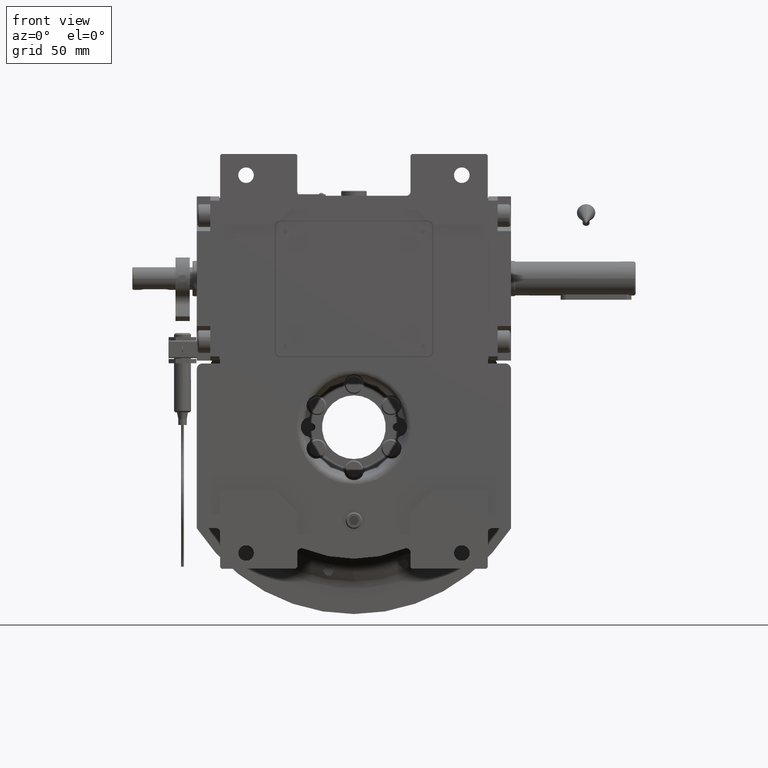
[diagram: clean part render]
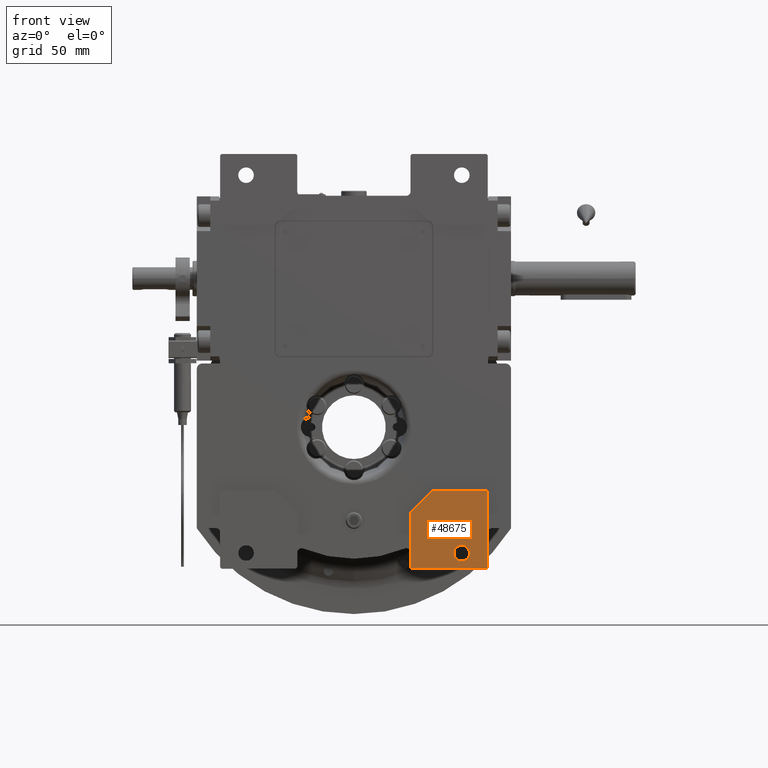
[diagram: same view with one face highlighted and labeled with its STEP entity id]
A machine part, front view. The second image highlights one B-rep face of the part: STEP entity #48675.
In plain terms, the highlighted planar face has unit normal (0, -1, 0).
Its self-contained STEP definition (entity closure, byte-faithful):
#143 = CARTESIAN_POINT ( 'NONE',  ( 70.70000000000000284, -55.50000000000000000, -89.00000000000000000 ) ) ;
#322 = LINE ( 'NONE', #46682, #2828 ) ;
#1805 = EDGE_CURVE ( 'NONE', #2159, #68722, #55876, .T. ) ;
#2159 = VERTEX_POINT ( 'NONE', #10096 ) ;
#2828 = VECTOR ( 'NONE', #17794, 1000.000000000000114 ) ;
#3043 = DIRECTION ( 'NONE',  ( 0.000000000000000000, 1.000000000000000000, 0.000000000000000000 ) ) ;
#3821 = AXIS2_PLACEMENT_3D ( 'NONE', #28385, #11287, #69430 ) ;
#3915 = ORIENTED_EDGE ( 'NONE', *, *, #1805, .T. ) ;
#5071 = DIRECTION ( 'NONE',  ( 0.000000000000000000, -1.000000000000000000, 0.000000000000000000 ) ) ;
#5297 = ORIENTED_EDGE ( 'NONE', *, *, #14186, .T. ) ;
#5453 = PLANE ( 'NONE',  #34710 ) ;
#5727 = ORIENTED_EDGE ( 'NONE', *, *, #53978, .T. ) ;
#5829 = CARTESIAN_POINT ( 'NONE',  ( 0.000000000000000000, -55.50000000000000000, 0.000000000000000000 ) ) ;
#6789 = CARTESIAN_POINT ( 'NONE',  ( 41.00000000000000000, -55.50000000000000000, -100.0000000000000000 ) ) ;
#8171 = VECTOR ( 'NONE', #39566, 1000.000000000000000 ) ;
#8293 = LINE ( 'NONE', #31472, #30603 ) ;
#8503 = EDGE_CURVE ( 'NONE', #16234, #52017, #42324, .T. ) ;
#10096 = CARTESIAN_POINT ( 'NONE',  ( 94.50000000000000000, -55.50000000000000000, -45.00000000000000000 ) ) ;
#10788 = FACE_OUTER_BOUND ( 'NONE', #13466, .T. ) ;
#11287 = DIRECTION ( 'NONE',  ( 0.000000000000000000, 1.000000000000000000, 0.000000000000000000 ) ) ;
#11587 = VERTEX_POINT ( 'NONE', #68274 ) ;
#13082 = DIRECTION ( 'NONE',  ( 0.7071067811865474617, 0.000000000000000000, 0.7071067811865474617 ) ) ;
#13466 = EDGE_LOOP ( 'NONE', ( #52292, #71505, #73595, #3915, #5727, #54107, #23725 ) ) ;
#13772 = VECTOR ( 'NONE', #61561, 1000.000000000000000 ) ;
#14186 = EDGE_CURVE ( 'NONE', #11587, #41418, #40307, .T. ) ;
#16040 = CARTESIAN_POINT ( 'NONE',  ( 40.00000000000000000, -55.50000000000000000, -99.00000000000000000 ) ) ;
#16234 = VERTEX_POINT ( 'NONE', #71206 ) ;
#17203 = FACE_BOUND ( 'NONE', #39365, .T. ) ;
#17794 = DIRECTION ( 'NONE',  ( -0.7071067811865474617, 0.000000000000000000, -0.7071067811865474617 ) ) ;
#20910 = VERTEX_POINT ( 'NONE', #6789 ) ;
#22829 = CARTESIAN_POINT ( 'NONE',  ( 40.00000000000000000, -55.50000000000000000, -60.00000000000000000 ) ) ;
#23207 = EDGE_CURVE ( 'NONE', #41418, #11587, #61718, .T. ) ;
#23257 = DIRECTION ( 'NONE',  ( 0.7071067811865474617, 0.000000000000000000, -0.7071067811865474617 ) ) ;
#23725 = ORIENTED_EDGE ( 'NONE', *, *, #36237, .T. ) ;
#24108 = ORIENTED_EDGE ( 'NONE', *, *, #23207, .T. ) ;
#24468 = CARTESIAN_POINT ( 'NONE',  ( 93.50000000000000000, -55.50000000000000000, -100.0000000000000000 ) ) ;
#26225 = DIRECTION ( 'NONE',  ( -1.000000000000000000, 0.000000000000000000, 0.000000000000000000 ) ) ;
#27827 = LINE ( 'NONE', #16040, #52421 ) ;
#28385 = CARTESIAN_POINT ( 'NONE',  ( 76.20000000000000284, -55.50000000000000000, -89.00000000000000000 ) ) ;
#30603 = VECTOR ( 'NONE', #61076, 1000.000000000000000 ) ;
#31472 = CARTESIAN_POINT ( 'NONE',  ( 41.00000000000000000, -55.50000000000000000, -100.0000000000000000 ) ) ;
#32772 = VECTOR ( 'NONE', #70893, 1000.000000000000000 ) ;
#33999 = VECTOR ( 'NONE', #13082, 1000.000000000000114 ) ;
#34222 = LINE ( 'NONE', #22829, #8171 ) ;
#34710 = AXIS2_PLACEMENT_3D ( 'NONE', #5829, #5071, #74970 ) ;
#35082 = CARTESIAN_POINT ( 'NONE',  ( 55.00000000000000000, -55.50000000000000000, -45.00000000000000000 ) ) ;
#35326 = VERTEX_POINT ( 'NONE', #44106 ) ;
#35936 = CARTESIAN_POINT ( 'NONE',  ( 94.50000000000000000, -55.50000000000000000, -99.00000000000000000 ) ) ;
#36237 = EDGE_CURVE ( 'NONE', #54517, #20910, #27827, .T. ) ;
#39365 = EDGE_LOOP ( 'NONE', ( #5297, #24108 ) ) ;
#39566 = DIRECTION ( 'NONE',  ( 0.000000000000000000, 0.000000000000000000, -1.000000000000000000 ) ) ;
#40307 = CIRCLE ( 'NONE', #3821, 5.500000000000005329 ) ;
#41418 = VERTEX_POINT ( 'NONE', #143 ) ;
#42324 = LINE ( 'NONE', #24468, #33999 ) ;
#44106 = CARTESIAN_POINT ( 'NONE',  ( 40.00000000000000000, -55.50000000000000000, -60.00000000000000000 ) ) ;
#46682 = CARTESIAN_POINT ( 'NONE',  ( 55.00000000000000000, -55.50000000000000000, -45.00000000000000000 ) ) ;
#48085 = LINE ( 'NONE', #35936, #32772 ) ;
#48675 = ADVANCED_FACE ( 'NONE', ( #17203, #10788 ), #5453, .T. ) ;
#49617 = AXIS2_PLACEMENT_3D ( 'NONE', #64381, #3043, #26225 ) ;
#51666 = CARTESIAN_POINT ( 'NONE',  ( 94.50000000000000000, -55.50000000000000000, -45.00000000000000000 ) ) ;
#52017 = VERTEX_POINT ( 'NONE', #72572 ) ;
#52292 = ORIENTED_EDGE ( 'NONE', *, *, #66593, .T. ) ;
#52421 = VECTOR ( 'NONE', #23257, 1000.000000000000114 ) ;
#53978 = EDGE_CURVE ( 'NONE', #68722, #35326, #322, .T. ) ;
#54107 = ORIENTED_EDGE ( 'NONE', *, *, #74208, .T. ) ;
#54517 = VERTEX_POINT ( 'NONE', #58387 ) ;
#55876 = LINE ( 'NONE', #51666, #13772 ) ;
#58387 = CARTESIAN_POINT ( 'NONE',  ( 40.00000000000000000, -55.50000000000000000, -99.00000000000000000 ) ) ;
#61076 = DIRECTION ( 'NONE',  ( 1.000000000000000000, 0.000000000000000000, 0.000000000000000000 ) ) ;
#61561 = DIRECTION ( 'NONE',  ( -1.000000000000000000, 0.000000000000000000, 0.000000000000000000 ) ) ;
#61718 = CIRCLE ( 'NONE', #49617, 5.500000000000005329 ) ;
#63934 = EDGE_CURVE ( 'NONE', #52017, #2159, #48085, .T. ) ;
#64381 = CARTESIAN_POINT ( 'NONE',  ( 76.20000000000000284, -55.50000000000000000, -89.00000000000000000 ) ) ;
#66593 = EDGE_CURVE ( 'NONE', #20910, #16234, #8293, .T. ) ;
#68274 = CARTESIAN_POINT ( 'NONE',  ( 81.69999999999998863, -55.50000000000000000, -89.00000000000000000 ) ) ;
#68722 = VERTEX_POINT ( 'NONE', #35082 ) ;
#69430 = DIRECTION ( 'NONE',  ( 1.000000000000000000, 0.000000000000000000, 0.000000000000000000 ) ) ;
#70893 = DIRECTION ( 'NONE',  ( 0.000000000000000000, 0.000000000000000000, 1.000000000000000000 ) ) ;
#71206 = CARTESIAN_POINT ( 'NONE',  ( 93.50000000000000000, -55.50000000000000000, -100.0000000000000000 ) ) ;
#71505 = ORIENTED_EDGE ( 'NONE', *, *, #8503, .T. ) ;
#72572 = CARTESIAN_POINT ( 'NONE',  ( 94.50000000000000000, -55.50000000000000000, -99.00000000000000000 ) ) ;
#73595 = ORIENTED_EDGE ( 'NONE', *, *, #63934, .T. ) ;
#74208 = EDGE_CURVE ( 'NONE', #35326, #54517, #34222, .T. ) ;
#74970 = DIRECTION ( 'NONE',  ( -1.000000000000000000, 0.000000000000000000, 0.000000000000000000 ) ) ;